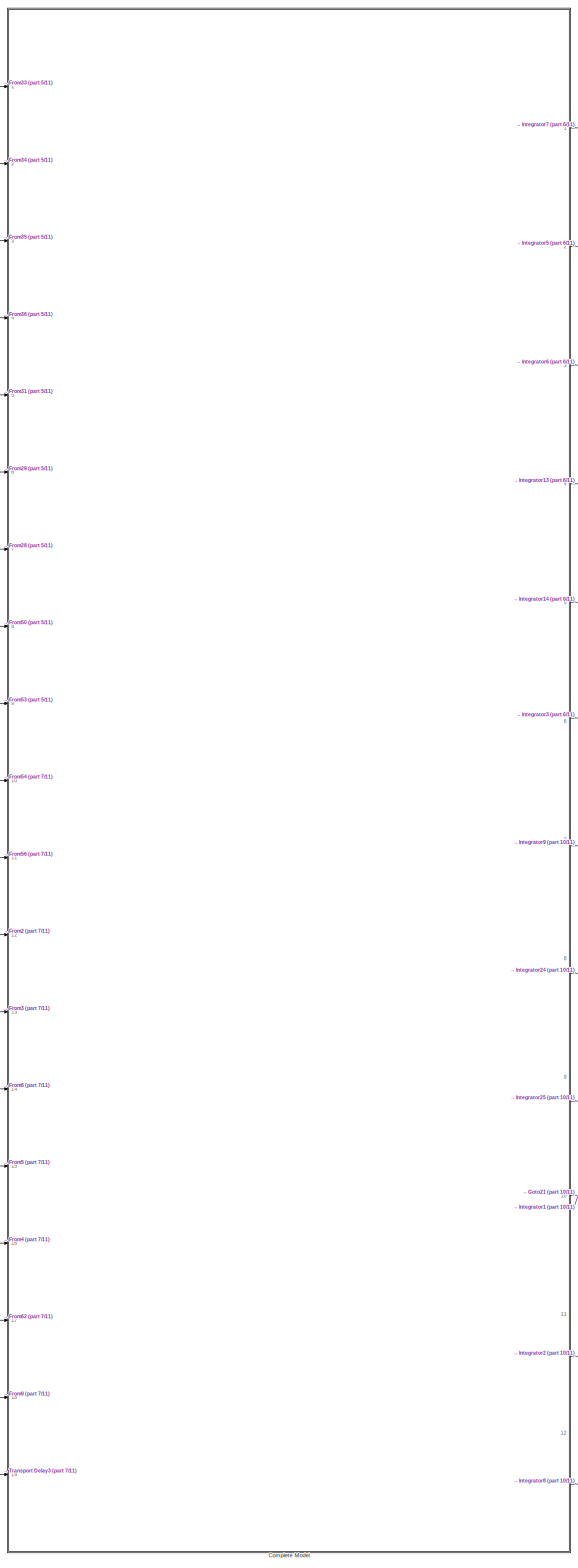
[diagram: root canvas - part 1/11, left side, full height]
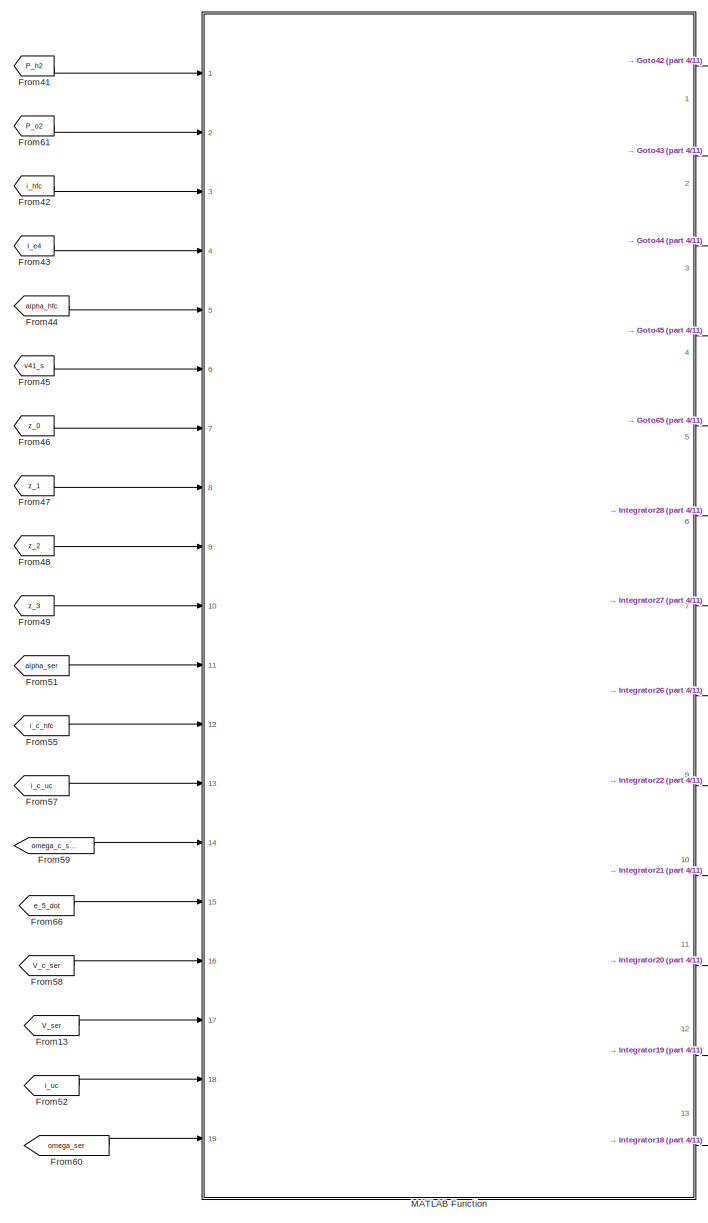
[diagram: root canvas - part 2/11, top center region]
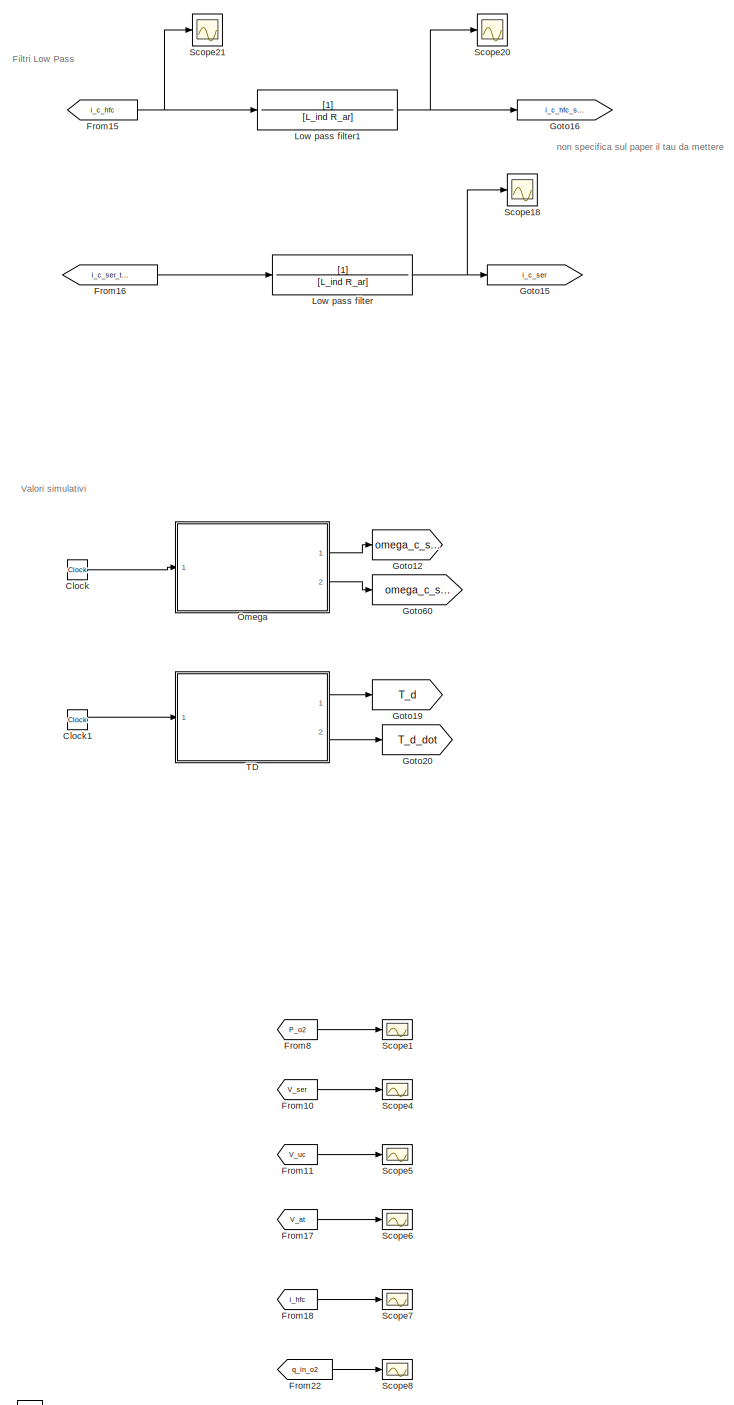
[diagram: root canvas - part 3/11, top right region]
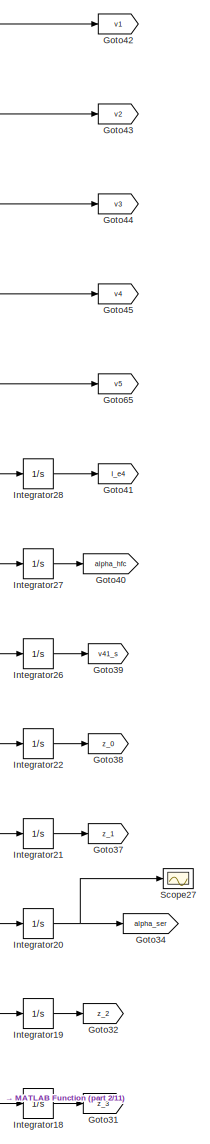
[diagram: root canvas - part 4/11, top center region]
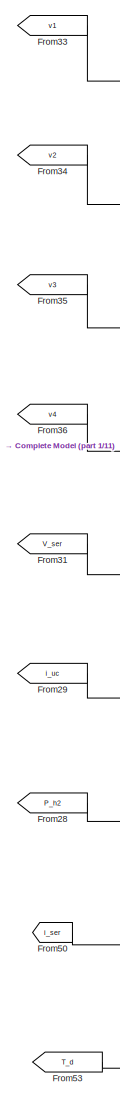
[diagram: root canvas - part 5/11, top left region]
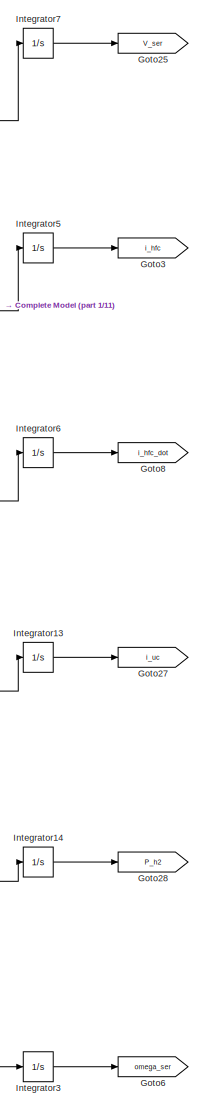
[diagram: root canvas - part 6/11, top left region]
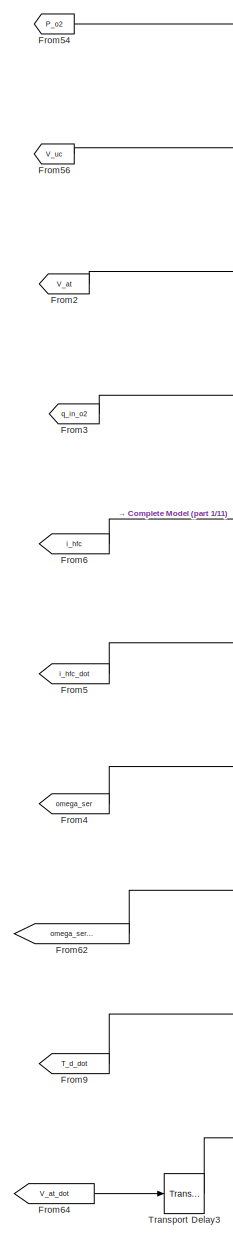
[diagram: root canvas - part 7/11, bottom left region]
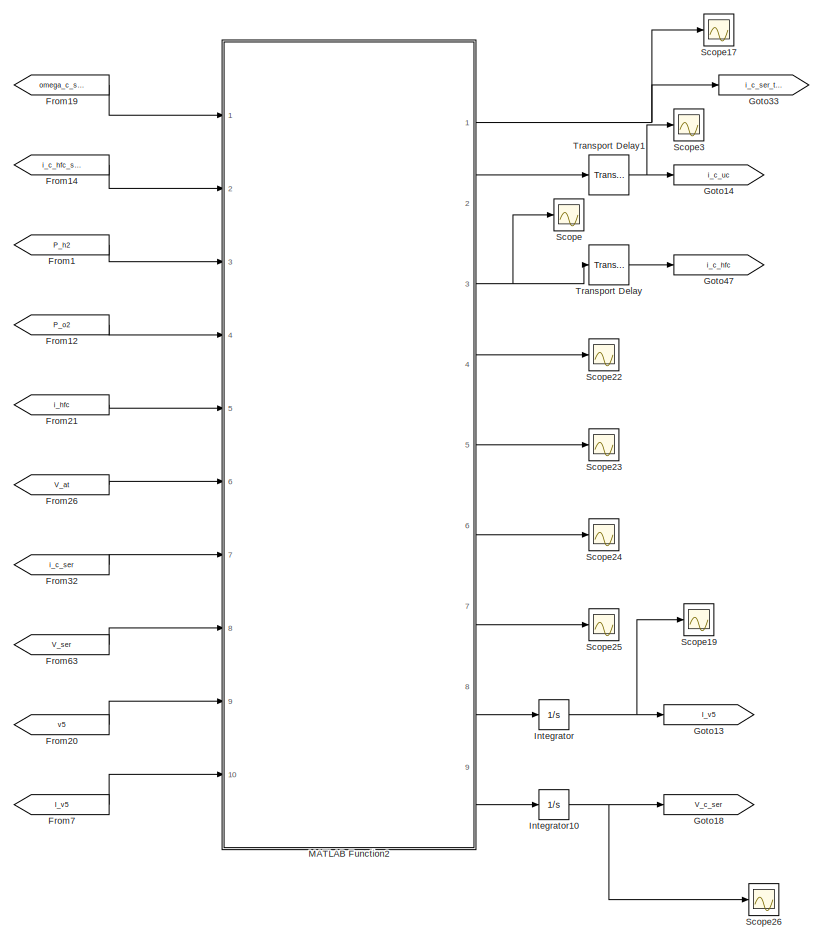
[diagram: root canvas - part 8/11, bottom right region]
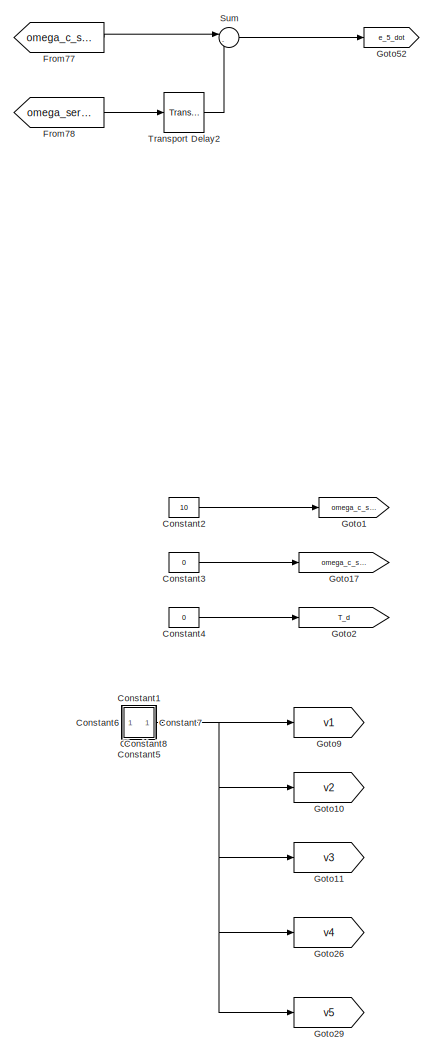
[diagram: root canvas - part 9/11, bottom center region]
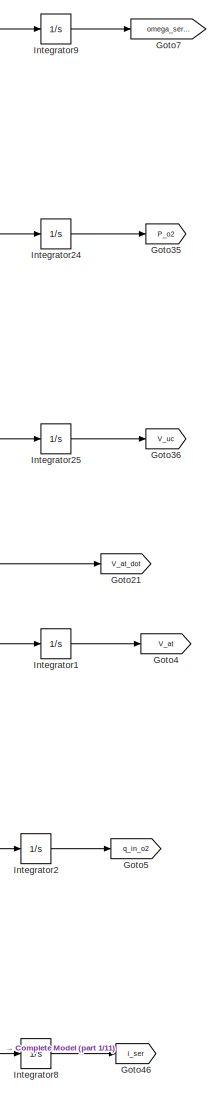
[diagram: root canvas - part 10/11, bottom left region]
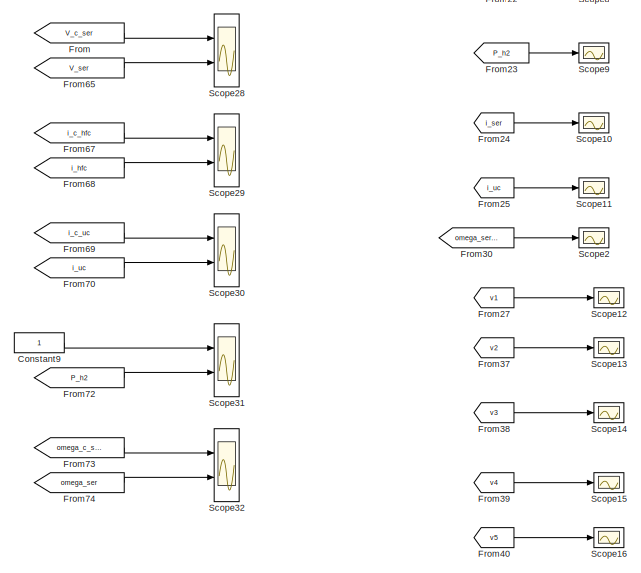
[diagram: root canvas - part 11/11, bottom right region]
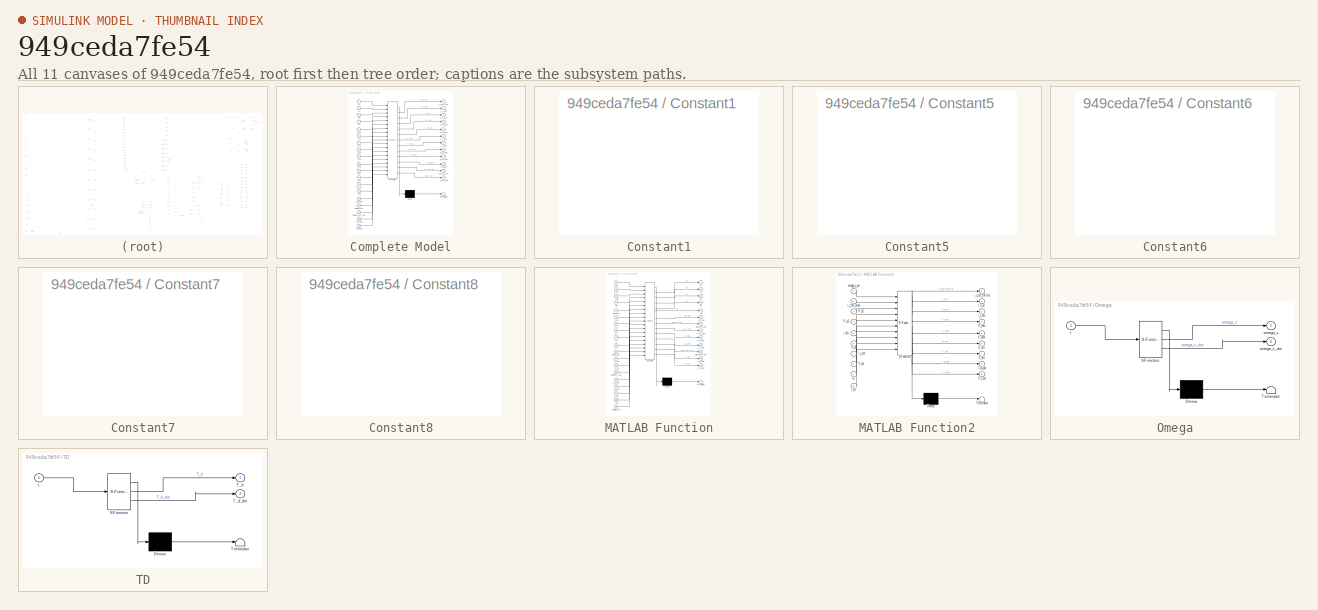
[diagram: thumbnail index - all 11 canvases of the model, root first then tree order]
MODEL slx_949ceda7fe54
KIND model
CONFIG AbsTol = 1e-3
CONFIG EnableMultiTasking = off
CONFIG FixedStep = 10e-4
CONFIG InitFcn = L_ind=4*10^-3;\nalpha_hfc=10\nalpha_ser=3\nR_ar=1\ninit_integratore=0.001\ndelay=0.000001
CONFIG MaxStep = 1e-4
CONFIG MinStep = auto
CONFIG RelTol = 10e-4
CONFIG SampleTimeConstraint = Unconstrained
CONFIG SolverName = ode1
CONFIG StartTime = 0
CONFIG StopTime = 30
BLOCK [Clock] Clock
BLOCK [Clock] Clock1
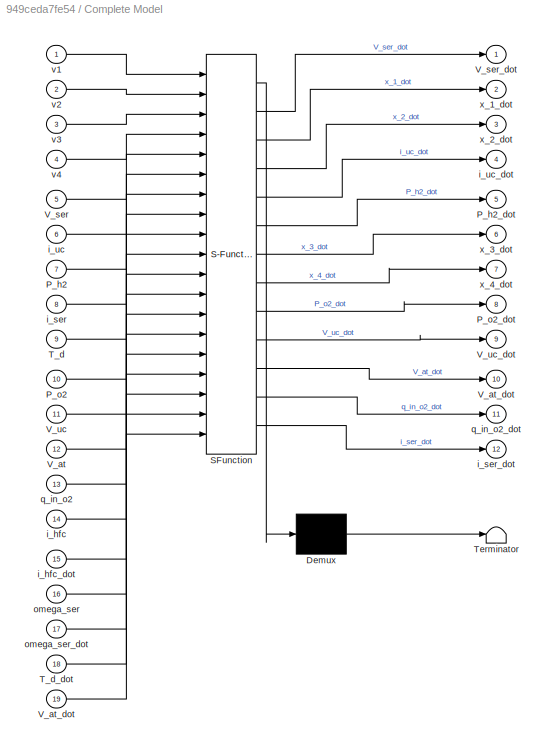
BLOCK [SubSystem] Complete Model
  ErrorFcn = Stateflow.Translate.translate
  PermitHierarchicalResolution = ExplicitOnly
  Ports = [19, 12]
  RequestExecContextInheritance = off
  SFBlockType = MATLAB Function
  TreatAsAtomicUnit = on
BLOCK [Demux] Complete Model/ Demux 
  Outputs = 1
  Ports = [1, 1]
BLOCK [S-Function] Complete Model/ SFunction 
  EnableBusSupport = on
  FunctionName = sf_sfun
  PortCounts = [19 13]
  Ports = [19, 13]
  SFcnIsStateOwnerBlock = off
  SFunctionDeploymentMode = off
  Tag = Stateflow S-Function 5
BLOCK [Terminator] Complete Model/ Terminator 
BLOCK [Inport] Complete Model/P_h2
  Port = 7
BLOCK [Outport] Complete Model/P_h2_dot
  Port = 5
BLOCK [Inport] Complete Model/P_o2
  Port = 10
BLOCK [Outport] Complete Model/P_o2_dot
  Port = 8
BLOCK [Inport] Complete Model/T_d
  Port = 9
BLOCK [Inport] Complete Model/T_d_dot
  Port = 18
BLOCK [Inport] Complete Model/V_at
  Port = 12
BLOCK [Outport] Complete Model/V_at_dot
  Port = 10
BLOCK [Inport] Complete Model/V_at_dot 
  Port = 19
BLOCK [Inport] Complete Model/V_ser
  Port = 5
BLOCK [Outport] Complete Model/V_ser_dot
BLOCK [Inport] Complete Model/V_uc
  Port = 11
BLOCK [Outport] Complete Model/V_uc_dot
  Port = 9
BLOCK [Inport] Complete Model/i_hfc
  Port = 14
BLOCK [Inport] Complete Model/i_hfc_dot
  Port = 15
BLOCK [Inport] Complete Model/i_ser
  Port = 8
BLOCK [Outport] Complete Model/i_ser_dot
  Port = 12
BLOCK [Inport] Complete Model/i_uc
  Port = 6
BLOCK [Outport] Complete Model/i_uc_dot
  Port = 4
BLOCK [Inport] Complete Model/omega_ser
  Port = 16
BLOCK [Inport] Complete Model/omega_ser_dot
  Port = 17
BLOCK [Inport] Complete Model/q_in_o2
  Port = 13
BLOCK [Outport] Complete Model/q_in_o2_dot
  Port = 11
BLOCK [Inport] Complete Model/v1
BLOCK [Inport] Complete Model/v2
  Port = 2
BLOCK [Inport] Complete Model/v3
  Port = 3
BLOCK [Inport] Complete Model/v4
  Port = 4
BLOCK [Outport] Complete Model/x_1_dot
  Port = 2
BLOCK [Outport] Complete Model/x_2_dot
  Port = 3
BLOCK [Outport] Complete Model/x_3_dot
  Port = 6
BLOCK [Outport] Complete Model/x_4_dot
  Port = 7
BLOCK [Constant] Constant
  Commented = on
  Value = 0
BLOCK [SubSystem] Constant1
  Commented = on
  Ports = []
  RequestExecContextInheritance = off
BLOCK [Constant] Constant2
  Commented = on
  Value = 10
BLOCK [Constant] Constant3
  Commented = on
  Value = 0
BLOCK [Constant] Constant4
  Commented = on
  Value = 0
BLOCK [SubSystem] Constant5
  Commented = on
  Ports = []
  RequestExecContextInheritance = off
BLOCK [SubSystem] Constant6
  Commented = on
  Ports = []
  RequestExecContextInheritance = off
BLOCK [SubSystem] Constant7
  Commented = on
  Ports = []
  RequestExecContextInheritance = off
BLOCK [SubSystem] Constant8
  Commented = on
  Ports = []
  RequestExecContextInheritance = off
BLOCK [Constant] Constant9
BLOCK [From] From
  GotoTag = V_c_ser
BLOCK [From] From1
  GotoTag = P_h2
BLOCK [From] From10
  GotoTag = V_ser
BLOCK [From] From11
  GotoTag = V_uc
BLOCK [From] From12
  GotoTag = P_o2
BLOCK [From] From13
  GotoTag = V_ser
BLOCK [From] From14
  GotoTag = i_c_hfc_slow
BLOCK [From] From15
  GotoTag = i_c_hfc
BLOCK [From] From16
  GotoTag = i_c_ser_tofilter
BLOCK [From] From17
  GotoTag = V_at
BLOCK [From] From18
  GotoTag = i_hfc
BLOCK [From] From19
  GotoTag = omega_c_ser
BLOCK [From] From2
  GotoTag = V_at
BLOCK [From] From20
  GotoTag = v5
BLOCK [From] From21
  GotoTag = i_hfc
BLOCK [From] From22
  GotoTag = q_in_o2
BLOCK [From] From23
  GotoTag = P_h2
BLOCK [From] From24
  GotoTag = i_ser
BLOCK [From] From25
  GotoTag = i_uc
BLOCK [From] From26
  GotoTag = V_at
BLOCK [From] From27
  GotoTag = v1
BLOCK [From] From28
  GotoTag = P_h2
BLOCK [From] From29
  GotoTag = i_uc
BLOCK [From] From3
  GotoTag = q_in_o2
BLOCK [From] From30
  GotoTag = omega_ser_dot
BLOCK [From] From31
  GotoTag = V_ser
BLOCK [From] From32
  GotoTag = i_c_ser
BLOCK [From] From33
  GotoTag = v1
BLOCK [From] From34
  GotoTag = v2
BLOCK [From] From35
  GotoTag = v3
BLOCK [From] From36
  GotoTag = v4
BLOCK [From] From37
  GotoTag = v2
BLOCK [From] From38
  GotoTag = v3
BLOCK [From] From39
  GotoTag = v4
BLOCK [From] From4
  GotoTag = omega_ser
BLOCK [From] From40
  GotoTag = v5
BLOCK [From] From41
  GotoTag = P_h2
BLOCK [From] From42
  GotoTag = i_hfc
BLOCK [From] From43
  GotoTag = I_e4
BLOCK [From] From44
  GotoTag = alpha_hfc
BLOCK [From] From45
  GotoTag = v41_s
BLOCK [From] From46
  GotoTag = z_0
BLOCK [From] From47
  GotoTag = z_1
BLOCK [From] From48
  GotoTag = z_2
BLOCK [From] From49
  GotoTag = z_3
BLOCK [From] From5
  GotoTag = i_hfc_dot
BLOCK [From] From50
  GotoTag = i_ser
BLOCK [From] From51
  GotoTag = alpha_ser
BLOCK [From] From52
  GotoTag = i_uc
BLOCK [From] From53
  GotoTag = T_d
BLOCK [From] From54
  GotoTag = P_o2
BLOCK [From] From55
  GotoTag = i_c_hfc
BLOCK [From] From56
  GotoTag = V_uc
BLOCK [From] From57
  GotoTag = i_c_uc
BLOCK [From] From58
  GotoTag = V_c_ser
BLOCK [From] From59
  GotoTag = omega_c_ser
BLOCK [From] From6
  GotoTag = i_hfc
BLOCK [From] From60
  GotoTag = omega_ser
BLOCK [From] From61
  GotoTag = P_o2
BLOCK [From] From62
  GotoTag = omega_ser_dot
BLOCK [From] From63
  GotoTag = V_ser
BLOCK [From] From64
  GotoTag = V_at_dot
BLOCK [From] From65
  GotoTag = V_ser
BLOCK [From] From66
  GotoTag = e_5_dot
BLOCK [From] From67
  GotoTag = i_c_hfc
BLOCK [From] From68
  GotoTag = i_hfc
BLOCK [From] From69
  GotoTag = i_c_uc
BLOCK [From] From7
  GotoTag = I_v5
BLOCK [From] From70
  GotoTag = i_uc
BLOCK [From] From72
  GotoTag = P_h2
BLOCK [From] From73
  GotoTag = omega_c_ser
BLOCK [From] From74
  GotoTag = omega_ser
BLOCK [From] From77
  GotoTag = omega_c_ser_dot
BLOCK [From] From78
  GotoTag = omega_ser_dot
BLOCK [From] From8
  GotoTag = P_o2
BLOCK [From] From9
  GotoTag = T_d_dot
BLOCK [Goto] Goto1
  Commented = on
  GotoTag = omega_c_ser
BLOCK [Goto] Goto10
  Commented = on
  GotoTag = v2
BLOCK [Goto] Goto11
  Commented = on
  GotoTag = v3
BLOCK [Goto] Goto12
  GotoTag = omega_c_ser
BLOCK [Goto] Goto13
  GotoTag = I_v5
BLOCK [Goto] Goto14
  GotoTag = i_c_uc
BLOCK [Goto] Goto15
  GotoTag = i_c_ser
BLOCK [Goto] Goto16
  GotoTag = i_c_hfc_slow
BLOCK [Goto] Goto17
  Commented = on
  GotoTag = omega_c_ser_dot
BLOCK [Goto] Goto18
  GotoTag = V_c_ser
BLOCK [Goto] Goto19
  GotoTag = T_d
BLOCK [Goto] Goto2
  Commented = on
  GotoTag = T_d
BLOCK [Goto] Goto20
  GotoTag = T_d_dot
BLOCK [Goto] Goto21
  GotoTag = V_at_dot
BLOCK [Goto] Goto25
  GotoTag = V_ser
BLOCK [Goto] Goto26
  Commented = on
  GotoTag = v4
BLOCK [Goto] Goto27
  GotoTag = i_uc
BLOCK [Goto] Goto28
  GotoTag = P_h2
BLOCK [Goto] Goto29
  Commented = on
  GotoTag = v5
BLOCK [Goto] Goto3
  GotoTag = i_hfc
BLOCK [Goto] Goto31
  GotoTag = z_3
BLOCK [Goto] Goto32
  GotoTag = z_2
BLOCK [Goto] Goto33
  GotoTag = i_c_ser_tofilter
BLOCK [Goto] Goto34
  GotoTag = alpha_ser
BLOCK [Goto] Goto35
  GotoTag = P_o2
BLOCK [Goto] Goto36
  GotoTag = V_uc
BLOCK [Goto] Goto37
  GotoTag = z_1
BLOCK [Goto] Goto38
  GotoTag = z_0
BLOCK [Goto] Goto39
  GotoTag = v41_s
BLOCK [Goto] Goto4
  GotoTag = V_at
BLOCK [Goto] Goto40
  GotoTag = alpha_hfc
BLOCK [Goto] Goto41
  GotoTag = I_e4
BLOCK [Goto] Goto42
  GotoTag = v1
BLOCK [Goto] Goto43
  GotoTag = v2
BLOCK [Goto] Goto44
  GotoTag = v3
BLOCK [Goto] Goto45
  GotoTag = v4
BLOCK [Goto] Goto46
  GotoTag = i_ser
BLOCK [Goto] Goto47
  GotoTag = i_c_hfc
BLOCK [Goto] Goto5
  GotoTag = q_in_o2
BLOCK [Goto] Goto52
  GotoTag = e_5_dot
BLOCK [Goto] Goto6
  GotoTag = omega_ser
BLOCK [Goto] Goto60
  GotoTag = omega_c_ser_dot
BLOCK [Goto] Goto65
  GotoTag = v5
BLOCK [Goto] Goto7
  GotoTag = omega_ser_dot
BLOCK [Goto] Goto8
  GotoTag = i_hfc_dot
BLOCK [Goto] Goto9
  Commented = on
  GotoTag = v1
BLOCK [Integrator] Integrator
  Ports = [1, 1]
BLOCK [Integrator] Integrator1
  Ports = [1, 1]
BLOCK [Integrator] Integrator10
  Ports = [1, 1]
BLOCK [Integrator] Integrator13
  Ports = [1, 1]
BLOCK [Integrator] Integrator14
  InitialCondition = init_integratore
  Ports = [1, 1]
BLOCK [Integrator] Integrator18
  Ports = [1, 1]
BLOCK [Integrator] Integrator19
  Ports = [1, 1]
BLOCK [Integrator] Integrator2
  Ports = [1, 1]
BLOCK [Integrator] Integrator20
  Ports = [1, 1]
BLOCK [Integrator] Integrator21
  Ports = [1, 1]
BLOCK [Integrator] Integrator22
  Ports = [1, 1]
BLOCK [Integrator] Integrator24
  InitialCondition = init_integratore
  Ports = [1, 1]
BLOCK [Integrator] Integrator25
  Ports = [1, 1]
BLOCK [Integrator] Integrator26
  Ports = [1, 1]
BLOCK [Integrator] Integrator27
  Ports = [1, 1]
BLOCK [Integrator] Integrator28
  Ports = [1, 1]
BLOCK [Integrator] Integrator3
  Ports = [1, 1]
BLOCK [Integrator] Integrator5
  Ports = [1, 1]
BLOCK [Integrator] Integrator6
  Ports = [1, 1]
BLOCK [Integrator] Integrator7
  InitialCondition = init_integratore
  Ports = [1, 1]
BLOCK [Integrator] Integrator8
  Ports = [1, 1]
BLOCK [Integrator] Integrator9
  Ports = [1, 1]
BLOCK [TransferFcn] Low pass filter
  Denominator = [L_ind R_ar]
BLOCK [TransferFcn] Low pass filter1
  Denominator = [L_ind R_ar]
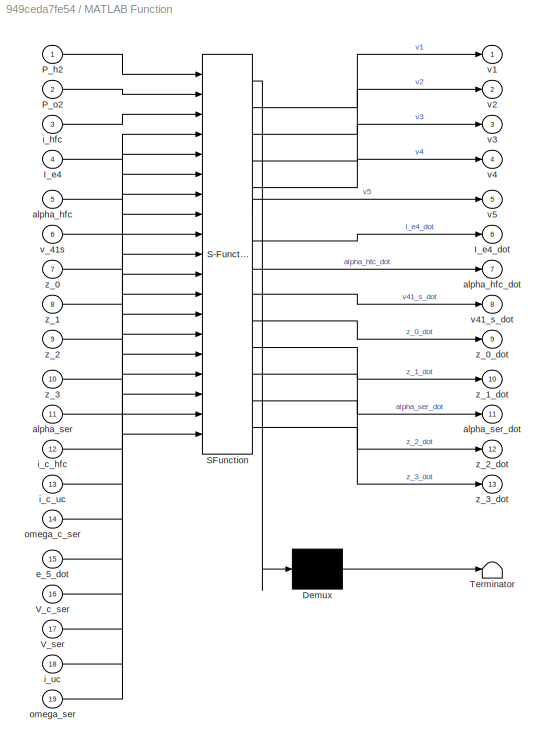
BLOCK [SubSystem] MATLAB Function
  ErrorFcn = Stateflow.Translate.translate
  PermitHierarchicalResolution = ExplicitOnly
  Ports = [19, 13]
  RequestExecContextInheritance = off
  SFBlockType = MATLAB Function
  TreatAsAtomicUnit = on
BLOCK [Demux] MATLAB Function/ Demux 
  Outputs = 1
  Ports = [1, 1]
BLOCK [S-Function] MATLAB Function/ SFunction 
  EnableBusSupport = on
  FunctionName = sf_sfun
  PortCounts = [19 14]
  Ports = [19, 14]
  SFcnIsStateOwnerBlock = off
  SFunctionDeploymentMode = off
  Tag = Stateflow S-Function 1
BLOCK [Terminator] MATLAB Function/ Terminator 
BLOCK [Inport] MATLAB Function/I_e4
  Port = 4
BLOCK [Outport] MATLAB Function/I_e4_dot
  Port = 6
BLOCK [Inport] MATLAB Function/P_h2
BLOCK [Inport] MATLAB Function/P_o2
  Port = 2
BLOCK [Inport] MATLAB Function/V_c_ser
  Port = 16
BLOCK [Inport] MATLAB Function/V_ser
  Port = 17
BLOCK [Inport] MATLAB Function/alpha_hfc
  Port = 5
BLOCK [Outport] MATLAB Function/alpha_hfc_dot
  Port = 7
BLOCK [Inport] MATLAB Function/alpha_ser
  Port = 11
BLOCK [Outport] MATLAB Function/alpha_ser_dot
  Port = 11
BLOCK [Inport] MATLAB Function/e_5_dot
  Port = 15
BLOCK [Inport] MATLAB Function/i_c_hfc
  Port = 12
BLOCK [Inport] MATLAB Function/i_c_uc
  Port = 13
BLOCK [Inport] MATLAB Function/i_hfc
  Port = 3
BLOCK [Inport] MATLAB Function/i_uc
  Port = 18
BLOCK [Inport] MATLAB Function/omega_c_ser
  Port = 14
BLOCK [Inport] MATLAB Function/omega_ser
  Port = 19
BLOCK [Outport] MATLAB Function/v1
BLOCK [Outport] MATLAB Function/v2
  Port = 2
BLOCK [Outport] MATLAB Function/v3
  Port = 3
BLOCK [Outport] MATLAB Function/v4
  Port = 4
BLOCK [Outport] MATLAB Function/v41_s_dot
  Port = 8
BLOCK [Outport] MATLAB Function/v5
  Port = 5
BLOCK [Inport] MATLAB Function/v_41s
  Port = 6
BLOCK [Inport] MATLAB Function/z_0
  Port = 7
BLOCK [Outport] MATLAB Function/z_0_dot
  Port = 9
BLOCK [Inport] MATLAB Function/z_1
  Port = 8
BLOCK [Outport] MATLAB Function/z_1_dot
  Port = 10
BLOCK [Inport] MATLAB Function/z_2
  Port = 9
BLOCK [Outport] MATLAB Function/z_2_dot
  Port = 12
BLOCK [Inport] MATLAB Function/z_3
  Port = 10
BLOCK [Outport] MATLAB Function/z_3_dot
  Port = 13
BLOCK [SubSystem] MATLAB Function2
  ErrorFcn = Stateflow.Translate.translate
  PermitHierarchicalResolution = ExplicitOnly
  Ports = [10, 9]
  RequestExecContextInheritance = off
  SFBlockType = MATLAB Function
  TreatAsAtomicUnit = on
BLOCK [Demux] MATLAB Function2/ Demux 
  Outputs = 1
  Ports = [1, 1]
BLOCK [S-Function] MATLAB Function2/ SFunction 
  EnableBusSupport = on
  FunctionName = sf_sfun
  PortCounts = [10 10]
  Ports = [10, 10]
  SFcnIsStateOwnerBlock = off
  SFunctionDeploymentMode = off
  Tag = Stateflow S-Function 3
BLOCK [Terminator] MATLAB Function2/ Terminator 
BLOCK [Outport] MATLAB Function2/E_hfc
  Port = 6
BLOCK [Inport] MATLAB Function2/I_v5
  Port = 10
BLOCK [Outport] MATLAB Function2/I_v5_dot
  Port = 8
BLOCK [Inport] MATLAB Function2/P_h2
  Port = 3
BLOCK [Inport] MATLAB Function2/P_o2
  Port = 4
BLOCK [Inport] MATLAB Function2/V_at
  Port = 6
BLOCK [Outport] MATLAB Function2/V_c_ser
  Port = 9
BLOCK [Outport] MATLAB Function2/V_hfc
  Port = 7
BLOCK [Outport] MATLAB Function2/V_ohm
  Port = 5
BLOCK [Inport] MATLAB Function2/V_ser
  Port = 8
BLOCK [Outport] MATLAB Function2/V_thfc
  Port = 4
BLOCK [Outport] MATLAB Function2/i_c_hfc
  Port = 3
BLOCK [Inport] MATLAB Function2/i_c_hfc_slow
  Port = 2
BLOCK [Inport] MATLAB Function2/i_c_ser
  Port = 7
BLOCK [Outport] MATLAB Function2/i_c_ser_tofilter
BLOCK [Outport] MATLAB Function2/i_c_uc
  Port = 2
BLOCK [Inport] MATLAB Function2/i_hfc
  Port = 5
BLOCK [Inport] MATLAB Function2/omega_c_ser
BLOCK [Inport] MATLAB Function2/v5
  Port = 9
BLOCK [SubSystem] Omega
  ErrorFcn = Stateflow.Translate.translate
  PermitHierarchicalResolution = ExplicitOnly
  Ports = [1, 2]
  RequestExecContextInheritance = off
  SFBlockType = MATLAB Function
  TreatAsAtomicUnit = on
BLOCK [Demux] Omega/ Demux 
  Outputs = 1
  Ports = [1, 1]
BLOCK [S-Function] Omega/ SFunction 
  EnableBusSupport = on
  FunctionName = sf_sfun
  PortCounts = [1 3]
  Ports = [1, 3]
  SFcnIsStateOwnerBlock = off
  SFunctionDeploymentMode = off
  Tag = Stateflow S-Function 7
BLOCK [Terminator] Omega/ Terminator 
BLOCK [Outport] Omega/omega_c
BLOCK [Outport] Omega/omega_c_dot
  Port = 2
BLOCK [Inport] Omega/t
BLOCK [Scope] Scope
  Floating = off
  NumInputPorts = 1
  Ports = [1]
  ScopeSpecificationString = Simulink.scopes.TimeScopeBlockCfg('CurrentConfiguration', extmgr.ConfigurationSet(extmgr.Configuration('Core','General UI',true),extmgr.Configuration('Core','Source UI',true),extmgr.Configuration('Sources','WiredSimulink',true,'DataLoggingVariableName','ScopeData1'),extmgr.Configuration('Visuals','Time Domain',true,'SerializedDisplays',{struct('MinYLimReal','-0.00006','MaxYLimReal','0.00016','YLab...<+1383ch>
BLOCK [Scope] Scope1
  Floating = off
  NumInputPorts = 1
  Ports = [1]
  ScopeSpecificationString = Simulink.scopes.TimeScopeBlockCfg('CurrentConfiguration', extmgr.ConfigurationSet(extmgr.Configuration('Core','General UI',true),extmgr.Configuration('Core','Source UI',true),extmgr.Configuration('Sources','WiredSimulink',true,'DataLoggingVariableName','ScopeData1'),extmgr.Configuration('Visuals','Time Domain',true,'SerializedDisplays',{struct('MinYLimReal','-12.87154','MaxYLimReal','2.54128','YLa...<+1419ch>
BLOCK [Scope] Scope10
  Floating = off
  NumInputPorts = 1
  Ports = [1]
  ScopeSpecificationString = Simulink.scopes.TimeScopeBlockCfg('CurrentConfiguration', extmgr.ConfigurationSet(extmgr.Configuration('Core','General UI',true),extmgr.Configuration('Core','Source UI',true),extmgr.Configuration('Sources','WiredSimulink',true,'DataLoggingVariableName','ScopeData7'),extmgr.Configuration('Visuals','Time Domain',true,'SerializedDisplays',{struct('MinYLimReal','-5.23002','MaxYLimReal','0.68489','YLab...<+1419ch>
BLOCK [Scope] Scope11
  Floating = off
  NumInputPorts = 1
  Ports = [1]
  ScopeSpecificationString = Simulink.scopes.TimeScopeBlockCfg('CurrentConfiguration', extmgr.ConfigurationSet(extmgr.Configuration('Core','General UI',true),extmgr.Configuration('Core','Source UI',true),extmgr.Configuration('Sources','WiredSimulink',true,'DataLoggingVariableName','ScopeData8'),extmgr.Configuration('Visuals','Time Domain',true,'SerializedDisplays',{struct('MinYLimReal','-77.69144','MaxYLimReal','8.73738','YLa...<+1394ch>
BLOCK [Scope] Scope12
  Floating = off
  NumInputPorts = 1
  Ports = [1]
  ScopeSpecificationString = Simulink.scopes.TimeScopeBlockCfg('CurrentConfiguration', extmgr.ConfigurationSet(extmgr.Configuration('Core','General UI',true),extmgr.Configuration('Core','Source UI',true),extmgr.Configuration('Sources','WiredSimulink',true,'DataLoggingVariableName','ScopeData9'),extmgr.Configuration('Visuals','Time Domain',true,'SerializedDisplays',{struct('MinYLimReal','-0.625','MaxYLimReal','0.625','YLabelRe...<+1470ch>
BLOCK [Scope] Scope13
  Floating = off
  NumInputPorts = 1
  Ports = [1]
  ScopeSpecificationString = Simulink.scopes.TimeScopeBlockCfg('CurrentConfiguration', extmgr.ConfigurationSet(extmgr.Configuration('Core','General UI',true),extmgr.Configuration('Core','Source UI',true),extmgr.Configuration('Sources','WiredSimulink',true,'DataLoggingVariableName','ScopeData10'),extmgr.Configuration('Visuals','Time Domain',true,'SerializedDisplays',{struct('MinYLimReal','-0.625','MaxYLimReal','0.625','YLabelR...<+1471ch>
BLOCK [Scope] Scope14
  Floating = off
  NumInputPorts = 1
  Ports = [1]
  ScopeSpecificationString = Simulink.scopes.TimeScopeBlockCfg('CurrentConfiguration', extmgr.ConfigurationSet(extmgr.Configuration('Core','General UI',true),extmgr.Configuration('Core','Source UI',true),extmgr.Configuration('Sources','WiredSimulink',true,'DataLoggingVariableName','ScopeData11'),extmgr.Configuration('Visuals','Time Domain',true,'SerializedDisplays',{struct('MinYLimReal','-0.09716','MaxYLimReal','0.52409','YLa...<+1502ch>
BLOCK [Scope] Scope15
  Floating = off
  NumInputPorts = 1
  Ports = [1]
  ScopeSpecificationString = Simulink.scopes.TimeScopeBlockCfg('CurrentConfiguration', extmgr.ConfigurationSet(extmgr.Configuration('Core','General UI',true),extmgr.Configuration('Core','Source UI',true),extmgr.Configuration('Sources','WiredSimulink',true,'DataLoggingVariableName','ScopeData12'),extmgr.Configuration('Visuals','Time Domain',true,'SerializedDisplays',{struct('MinYLimReal','-0.000002','MaxYLimReal','0.00001','YL...<+1487ch>
BLOCK [Scope] Scope16
  Floating = off
  NumInputPorts = 1
  Ports = [1]
  ScopeSpecificationString = Simulink.scopes.TimeScopeBlockCfg('CurrentConfiguration', extmgr.ConfigurationSet(extmgr.Configuration('Core','General UI',true),extmgr.Configuration('Core','Source UI',true),extmgr.Configuration('Sources','WiredSimulink',true,'DataLoggingVariableName','ScopeData13'),extmgr.Configuration('Visuals','Time Domain',true,'SerializedDisplays',{struct('MinYLimReal','-0.50601','MaxYLimReal','0.05622','YLa...<+1483ch>
BLOCK [Scope] Scope17
  Floating = off
  NumInputPorts = 1
  Ports = [1]
  ScopeSpecificationString = Simulink.scopes.TimeScopeBlockCfg('CurrentConfiguration', extmgr.ConfigurationSet(extmgr.Configuration('Core','General UI',true),extmgr.Configuration('Core','Source UI',true),extmgr.Configuration('Sources','WiredSimulink',true,'DataLoggingVariableName','ScopeData3'),extmgr.Configuration('Visuals','Time Domain',true,'SerializedDisplays',{struct('MinYLimReal','-22.49966','MaxYLimReal','2.48553','YLa...<+1396ch>
BLOCK [Scope] Scope18
  Floating = off
  NumInputPorts = 1
  Ports = [1]
  ScopeSpecificationString = Simulink.scopes.TimeScopeBlockCfg('CurrentConfiguration', extmgr.ConfigurationSet(extmgr.Configuration('Core','General UI',true),extmgr.Configuration('Core','Source UI',true),extmgr.Configuration('Sources','WiredSimulink',true,'DataLoggingVariableName','ScopeData4'),extmgr.Configuration('Visuals','Time Domain',true,'SerializedDisplays',{struct('MinYLimReal','-22.50208','MaxYLimReal','2.50023','YLa...<+1378ch>
BLOCK [Scope] Scope19
  Floating = off
  NumInputPorts = 1
  Ports = [1]
  ScopeSpecificationString = Simulink.scopes.TimeScopeBlockCfg('CurrentConfiguration', extmgr.ConfigurationSet(extmgr.Configuration('Core','General UI',true),extmgr.Configuration('Core','Source UI',true),extmgr.Configuration('Sources','WiredSimulink',true,'DataLoggingVariableName','ScopeData1'),extmgr.Configuration('Visuals','Time Domain',true,'SerializedDisplays',{struct('MinYLimReal','-6.55732','MaxYLimReal','0.7288','YLabe...<+1367ch>
BLOCK [Scope] Scope2
  Floating = off
  NumInputPorts = 1
  Ports = [1]
  ScopeSpecificationString = Simulink.scopes.TimeScopeBlockCfg('CurrentConfiguration', extmgr.ConfigurationSet(extmgr.Configuration('Core','General UI',true),extmgr.Configuration('Core','Source UI',true),extmgr.Configuration('Sources','WiredSimulink',true,'DataLoggingVariableName','ScopeData1'),extmgr.Configuration('Visuals','Time Domain',true,'SerializedDisplays',{struct('MinYLimReal','-412.55714','MaxYLimReal','144.39544','...<+1403ch>
BLOCK [Scope] Scope20
  Floating = off
  NumInputPorts = 1
  Ports = [1]
  ScopeSpecificationString = Simulink.scopes.TimeScopeBlockCfg('CurrentConfiguration', extmgr.ConfigurationSet(extmgr.Configuration('Core','General UI',true),extmgr.Configuration('Core','Source UI',true),extmgr.Configuration('Sources','WiredSimulink',true,'DataLoggingVariableName','ScopeData5'),extmgr.Configuration('Visuals','Time Domain',true,'SerializedDisplays',{struct('MinYLimReal','-0.21635','MaxYLimReal','0.04465','YLab...<+1375ch>
BLOCK [Scope] Scope21
  Floating = off
  NumInputPorts = 1
  Ports = [1]
  ScopeSpecificationString = Simulink.scopes.TimeScopeBlockCfg('CurrentConfiguration', extmgr.ConfigurationSet(extmgr.Configuration('Core','General UI',true),extmgr.Configuration('Core','Source UI',true),extmgr.Configuration('Sources','WiredSimulink',true,'DataLoggingVariableName','ScopeData6'),extmgr.Configuration('Visuals','Time Domain',true,'SerializedDisplays',{struct('MinYLimReal','-0.00027','MaxYLimReal','0.0003','YLabe...<+1370ch>
BLOCK [Scope] Scope22
  Floating = off
  NumInputPorts = 1
  Ports = [1]
  ScopeSpecificationString = Simulink.scopes.TimeScopeBlockCfg('CurrentConfiguration', extmgr.ConfigurationSet(extmgr.Configuration('Core','General UI',true),extmgr.Configuration('Core','Source UI',true),extmgr.Configuration('Sources','WiredSimulink',true,'DataLoggingVariableName','ScopeData7'),extmgr.Configuration('Visuals','Time Domain',true,'SerializedDisplays',{struct('MinYLimReal','-12079.98627','MaxYLimReal','2045.75051...<+1410ch>
BLOCK [Scope] Scope23
  Floating = off
  NumInputPorts = 1
  Ports = [1]
  ScopeSpecificationString = Simulink.scopes.TimeScopeBlockCfg('CurrentConfiguration', extmgr.ConfigurationSet(extmgr.Configuration('Core','General UI',true),extmgr.Configuration('Core','Source UI',true),extmgr.Configuration('Sources','WiredSimulink',true,'DataLoggingVariableName','ScopeData8'),extmgr.Configuration('Visuals','Time Domain',true,'SerializedDisplays',{struct('MinYLimReal','-4.80929','MaxYLimReal','28.67016','YLa...<+1385ch>
BLOCK [Scope] Scope24
  Floating = off
  NumInputPorts = 1
  Ports = [1]
  ScopeSpecificationString = Simulink.scopes.TimeScopeBlockCfg('CurrentConfiguration', extmgr.ConfigurationSet(extmgr.Configuration('Core','General UI',true),extmgr.Configuration('Core','Source UI',true),extmgr.Configuration('Sources','WiredSimulink',true,'DataLoggingVariableName','ScopeData9'),extmgr.Configuration('Visuals','Time Domain',true,'SerializedDisplays',{struct('MinYLimReal','-0.15431','MaxYLimReal','0.06803','YLab...<+1381ch>
BLOCK [Scope] Scope25
  Floating = off
  NumInputPorts = 1
  Ports = [1]
  ScopeSpecificationString = Simulink.scopes.TimeScopeBlockCfg('CurrentConfiguration', extmgr.ConfigurationSet(extmgr.Configuration('Core','General UI',true),extmgr.Configuration('Core','Source UI',true),extmgr.Configuration('Sources','WiredSimulink',true,'DataLoggingVariableName','ScopeData10'),extmgr.Configuration('Visuals','Time Domain',true,'SerializedDisplays',{struct('MinYLimReal','-65.29722','MaxYLimReal','11.05811','Y...<+1388ch>
BLOCK [Scope] Scope26
  Floating = off
  NumInputPorts = 1
  Ports = [1]
  ScopeSpecificationString = Simulink.scopes.TimeScopeBlockCfg('CurrentConfiguration', extmgr.ConfigurationSet(extmgr.Configuration('Core','General UI',true),extmgr.Configuration('Core','Source UI',true),extmgr.Configuration('Sources','WiredSimulink',true,'DataLoggingVariableName','ScopeData2'),extmgr.Configuration('Visuals','Time Domain',true,'SerializedDisplays',{struct('MinYLimReal','-0.30031','MaxYLimReal','0.03337','YLab...<+1371ch>
BLOCK [Scope] Scope27
  Floating = off
  NumInputPorts = 1
  Ports = [1]
  ScopeSpecificationString = Simulink.scopes.TimeScopeBlockCfg('CurrentConfiguration', extmgr.ConfigurationSet(extmgr.Configuration('Core','General UI',true),extmgr.Configuration('Core','Source UI',true),extmgr.Configuration('Sources','WiredSimulink',true,'DataLoggingVariableName','ScopeData3'),extmgr.Configuration('Visuals','Time Domain',true,'SerializedDisplays',{struct('MinYLimReal','-0.0375','MaxYLimReal','0.3375','YLabel...<+1409ch>
BLOCK [Scope] Scope28
  Floating = off
  NumInputPorts = 2
  Ports = [2]
  ScopeSpecificationString = Simulink.scopes.TimeScopeBlockCfg('CurrentConfiguration', extmgr.ConfigurationSet(extmgr.Configuration('Core','General UI',true),extmgr.Configuration('Core','Source UI',true),extmgr.Configuration('Sources','WiredSimulink',true,'DataLoggingVariableName','ScopeData4'),extmgr.Configuration('Visuals','Time Domain',true,'SerializedDisplays',{struct('MinYLimReal','-54.08529','MaxYLimReal','39.32118','YL...<+1418ch>
BLOCK [Scope] Scope29
  Floating = off
  NumInputPorts = 2
  Ports = [2]
  ScopeSpecificationString = Simulink.scopes.TimeScopeBlockCfg('CurrentConfiguration', extmgr.ConfigurationSet(extmgr.Configuration('Core','General UI',true),extmgr.Configuration('Core','Source UI',true),extmgr.Configuration('Sources','WiredSimulink',true,'DataLoggingVariableName','ScopeData5'),extmgr.Configuration('Visuals','Time Domain',true,'SerializedDisplays',{struct('MinYLimReal','-97.72707','MaxYLimReal','485.87864','Y...<+1469ch>
BLOCK [Scope] Scope3
  Floating = off
  NumInputPorts = 1
  Ports = [1]
  ScopeSpecificationString = Simulink.scopes.TimeScopeBlockCfg('CurrentConfiguration', extmgr.ConfigurationSet(extmgr.Configuration('Core','General UI',true),extmgr.Configuration('Core','Source UI',true),extmgr.Configuration('Sources','WiredSimulink',true,'DataLoggingVariableName','ScopeData2'),extmgr.Configuration('Visuals','Time Domain',true,'SerializedDisplays',{struct('MinYLimReal','-0.2936','MaxYLimReal','0.17066','YLabe...<+1371ch>
BLOCK [Scope] Scope30
  Floating = off
  NumInputPorts = 2
  Ports = [2]
  ScopeSpecificationString = Simulink.scopes.TimeScopeBlockCfg('CurrentConfiguration', extmgr.ConfigurationSet(extmgr.Configuration('Core','General UI',true),extmgr.Configuration('Core','Source UI',true),extmgr.Configuration('Sources','WiredSimulink',true,'DataLoggingVariableName','ScopeData6'),extmgr.Configuration('Visuals','Time Domain',true,'SerializedDisplays',{struct('MinYLimReal','-60.34072','MaxYLimReal','11.3823','YLa...<+1440ch>
BLOCK [Scope] Scope31
  Floating = off
  NumInputPorts = 2
  Ports = [2]
  ScopeSpecificationString = Simulink.scopes.TimeScopeBlockCfg('CurrentConfiguration', extmgr.ConfigurationSet(extmgr.Configuration('Core','General UI',true),extmgr.Configuration('Core','Source UI',true),extmgr.Configuration('Sources','WiredSimulink',true,'DataLoggingVariableName','ScopeData7'),extmgr.Configuration('Visuals','Time Domain',true,'SerializedDisplays',{struct('MinYLimReal','-0.22745','MaxYLimReal','2.05702','YLab...<+1454ch>
BLOCK [Scope] Scope32
  Floating = off
  NumInputPorts = 2
  Ports = [2]
  ScopeSpecificationString = Simulink.scopes.TimeScopeBlockCfg('CurrentConfiguration', extmgr.ConfigurationSet(extmgr.Configuration('Core','General UI',true),extmgr.Configuration('Core','Source UI',true),extmgr.Configuration('Sources','WiredSimulink',true,'DataLoggingVariableName','ScopeData8'),extmgr.Configuration('Visuals','Time Domain',true,'SerializedDisplays',{struct('MinYLimReal','-2041.21262','MaxYLimReal','449.02362',...<+1448ch>
BLOCK [Scope] Scope4
  Floating = off
  NumInputPorts = 1
  Ports = [1]
  ScopeSpecificationString = Simulink.scopes.TimeScopeBlockCfg('CurrentConfiguration', extmgr.ConfigurationSet(extmgr.Configuration('Core','General UI',true),extmgr.Configuration('Core','Source UI',true),extmgr.Configuration('Sources','WiredSimulink',true,'DataLoggingVariableName','ScopeData1'),extmgr.Configuration('Visuals','Time Domain',true,'SerializedDisplays',{struct('MinYLimReal','-9.6887','MaxYLimReal','2.18763','YLabe...<+1385ch>
BLOCK [Scope] Scope5
  Floating = off
  NumInputPorts = 1
  Ports = [1]
  ScopeSpecificationString = Simulink.scopes.TimeScopeBlockCfg('CurrentConfiguration', extmgr.ConfigurationSet(extmgr.Configuration('Core','General UI',true),extmgr.Configuration('Core','Source UI',true),extmgr.Configuration('Sources','WiredSimulink',true,'DataLoggingVariableName','ScopeData2'),extmgr.Configuration('Visuals','Time Domain',true,'SerializedDisplays',{struct('MinYLimReal','-0.02285','MaxYLimReal','0.00275','YLab...<+1390ch>
BLOCK [Scope] Scope6
  Floating = off
  NumInputPorts = 1
  Ports = [1]
  ScopeSpecificationString = Simulink.scopes.TimeScopeBlockCfg('CurrentConfiguration', extmgr.ConfigurationSet(extmgr.Configuration('Core','General UI',true),extmgr.Configuration('Core','Source UI',true),extmgr.Configuration('Sources','WiredSimulink',true,'DataLoggingVariableName','ScopeData3'),extmgr.Configuration('Visuals','Time Domain',true,'SerializedDisplays',{struct('MinYLimReal','-1.77667','MaxYLimReal','15.17775','YLa...<+1393ch>
BLOCK [Scope] Scope7
  Floating = off
  NumInputPorts = 1
  Ports = [1]
  ScopeSpecificationString = Simulink.scopes.TimeScopeBlockCfg('CurrentConfiguration', extmgr.ConfigurationSet(extmgr.Configuration('Core','General UI',true),extmgr.Configuration('Core','Source UI',true),extmgr.Configuration('Sources','WiredSimulink',true,'DataLoggingVariableName','ScopeData4'),extmgr.Configuration('Visuals','Time Domain',true,'SerializedDisplays',{struct('MinYLimReal','-22.288','MaxYLimReal','190.27141','YLa...<+1425ch>
BLOCK [Scope] Scope8
  Floating = off
  NumInputPorts = 1
  Ports = [1]
  ScopeSpecificationString = Simulink.scopes.TimeScopeBlockCfg('CurrentConfiguration', extmgr.ConfigurationSet(extmgr.Configuration('Core','General UI',true),extmgr.Configuration('Core','Source UI',true),extmgr.Configuration('Sources','WiredSimulink',true,'DataLoggingVariableName','ScopeData5'),extmgr.Configuration('Visuals','Time Domain',true,'SerializedDisplays',{struct('MinYLimReal','-19938153416956320783335628932484358951...<+3815ch>
BLOCK [Scope] Scope9
  Floating = off
  NumInputPorts = 1
  Ports = [1]
  ScopeSpecificationString = Simulink.scopes.TimeScopeBlockCfg('CurrentConfiguration', extmgr.ConfigurationSet(extmgr.Configuration('Core','General UI',true),extmgr.Configuration('Core','Source UI',true),extmgr.Configuration('Sources','WiredSimulink',true,'DataLoggingVariableName','ScopeData6'),extmgr.Configuration('Visuals','Time Domain',true,'SerializedDisplays',{struct('MinYLimReal','-12878.90621','MaxYLimReal','115910.156...<+1451ch>
BLOCK [Sum] Sum
  Inputs = |-+
  Ports = [2, 1]
BLOCK [SubSystem] TD
  ErrorFcn = Stateflow.Translate.translate
  PermitHierarchicalResolution = ExplicitOnly
  Ports = [1, 2]
  RequestExecContextInheritance = off
  SFBlockType = MATLAB Function
  TreatAsAtomicUnit = on
BLOCK [Demux] TD/ Demux 
  Outputs = 1
  Ports = [1, 1]
BLOCK [S-Function] TD/ SFunction 
  EnableBusSupport = on
  FunctionName = sf_sfun
  PortCounts = [1 3]
  Ports = [1, 3]
  SFcnIsStateOwnerBlock = off
  SFunctionDeploymentMode = off
  Tag = Stateflow S-Function 8
BLOCK [Terminator] TD/ Terminator 
BLOCK [Outport] TD/T_d
BLOCK [Outport] TD/T_d_dot
  Port = 2
BLOCK [Inport] TD/t
BLOCK [TransportDelay] Transport Delay
  DelayTime = delay
  Ports = [1, 1]
BLOCK [TransportDelay] Transport Delay1
  DelayTime = delay
  Ports = [1, 1]
BLOCK [TransportDelay] Transport Delay2
  DelayTime = delay
  Ports = [1, 1]
BLOCK [TransportDelay] Transport Delay3
  DelayTime = delay
  Ports = [1, 1]
ANNOTATION (root): Filtri Low Pass
ANNOTATION (root): Valori simulativi
ANNOTATION (root): non specifica sul paper il tau da mettere
LINE Clock1:1 -> TD:1
LINE Clock:1 -> Omega:1
LINE Complete Model:1 -> Integrator7:1
NET Complete Model:10 -> Goto21:1, Integrator1:1
LINE Complete Model:11 -> Integrator2:1
LINE Complete Model:12 -> Integrator8:1
LINE Complete Model:2 -> Integrator5:1
LINE Complete Model:3 -> Integrator6:1
LINE Complete Model:4 -> Integrator13:1
LINE Complete Model:5 -> Integrator14:1
LINE Complete Model:6 -> Integrator3:1
LINE Complete Model:7 -> Integrator9:1
LINE Complete Model:8 -> Integrator24:1
LINE Complete Model:9 -> Integrator25:1
LINE Constant2:1 -> Goto1:1
LINE Constant3:1 -> Goto17:1
LINE Constant4:1 -> Goto2:1
LINE Constant9:1 -> Scope31:1
NET Constant:1 -> Goto10:1, Goto11:1, Goto26:1, Goto29:1, Goto9:1
LINE From10:1 -> Scope4:1
LINE From11:1 -> Scope5:1
LINE From12:1 -> MATLAB Function2:4
LINE From13:1 -> MATLAB Function:17
LINE From14:1 -> MATLAB Function2:2
NET From15:1 -> Low pass filter1:1, Scope21:1
LINE From16:1 -> Low pass filter:1
LINE From17:1 -> Scope6:1
LINE From18:1 -> Scope7:1
LINE From19:1 -> MATLAB Function2:1
LINE From1:1 -> MATLAB Function2:3
LINE From20:1 -> MATLAB Function2:9
LINE From21:1 -> MATLAB Function2:5
LINE From22:1 -> Scope8:1
LINE From23:1 -> Scope9:1
LINE From24:1 -> Scope10:1
LINE From25:1 -> Scope11:1
LINE From26:1 -> MATLAB Function2:6
LINE From27:1 -> Scope12:1
LINE From28:1 -> Complete Model:7
LINE From29:1 -> Complete Model:6
LINE From2:1 -> Complete Model:12
LINE From30:1 -> Scope2:1
LINE From31:1 -> Complete Model:5
LINE From32:1 -> MATLAB Function2:7
LINE From33:1 -> Complete Model:1
LINE From34:1 -> Complete Model:2
LINE From35:1 -> Complete Model:3
LINE From36:1 -> Complete Model:4
LINE From37:1 -> Scope13:1
LINE From38:1 -> Scope14:1
LINE From39:1 -> Scope15:1
LINE From3:1 -> Complete Model:13
LINE From40:1 -> Scope16:1
LINE From41:1 -> MATLAB Function:1
LINE From42:1 -> MATLAB Function:3
LINE From43:1 -> MATLAB Function:4
LINE From44:1 -> MATLAB Function:5
LINE From45:1 -> MATLAB Function:6
LINE From46:1 -> MATLAB Function:7
LINE From47:1 -> MATLAB Function:8
LINE From48:1 -> MATLAB Function:9
LINE From49:1 -> MATLAB Function:10
LINE From4:1 -> Complete Model:16
LINE From50:1 -> Complete Model:8
LINE From51:1 -> MATLAB Function:11
LINE From52:1 -> MATLAB Function:18
LINE From53:1 -> Complete Model:9
LINE From54:1 -> Complete Model:10
LINE From55:1 -> MATLAB Function:12
LINE From56:1 -> Complete Model:11
LINE From57:1 -> MATLAB Function:13
LINE From58:1 -> MATLAB Function:16
LINE From59:1 -> MATLAB Function:14
LINE From5:1 -> Complete Model:15
LINE From60:1 -> MATLAB Function:19
LINE From61:1 -> MATLAB Function:2
LINE From62:1 -> Complete Model:17
LINE From63:1 -> MATLAB Function2:8
LINE From64:1 -> Transport Delay3:1
LINE From65:1 -> Scope28:2
LINE From66:1 -> MATLAB Function:15
LINE From67:1 -> Scope29:1
LINE From68:1 -> Scope29:2
LINE From69:1 -> Scope30:1
LINE From6:1 -> Complete Model:14
LINE From70:1 -> Scope30:2
LINE From72:1 -> Scope31:2
LINE From73:1 -> Scope32:1
LINE From74:1 -> Scope32:2
LINE From77:1 -> Sum:1
LINE From78:1 -> Transport Delay2:1
LINE From7:1 -> MATLAB Function2:10
LINE From8:1 -> Scope1:1
LINE From9:1 -> Complete Model:18
LINE From:1 -> Scope28:1
NET Integrator10:1 -> Goto18:1, Scope26:1
LINE Integrator13:1 -> Goto27:1
LINE Integrator14:1 -> Goto28:1
LINE Integrator18:1 -> Goto31:1
LINE Integrator19:1 -> Goto32:1
LINE Integrator1:1 -> Goto4:1
NET Integrator20:1 -> Goto34:1, Scope27:1
LINE Integrator21:1 -> Goto37:1
LINE Integrator22:1 -> Goto38:1
LINE Integrator24:1 -> Goto35:1
LINE Integrator25:1 -> Goto36:1
LINE Integrator26:1 -> Goto39:1
LINE Integrator27:1 -> Goto40:1
LINE Integrator28:1 -> Goto41:1
LINE Integrator2:1 -> Goto5:1
LINE Integrator3:1 -> Goto6:1
LINE Integrator5:1 -> Goto3:1
LINE Integrator6:1 -> Goto8:1
LINE Integrator7:1 -> Goto25:1
LINE Integrator8:1 -> Goto46:1
LINE Integrator9:1 -> Goto7:1
NET Integrator:1 -> Goto13:1, Scope19:1
NET Low pass filter1:1 -> Goto16:1, Scope20:1
NET Low pass filter:1 -> Goto15:1, Scope18:1
NET MATLAB Function2:1 -> Goto33:1, Scope17:1
LINE MATLAB Function2:2 -> Transport Delay1:1
NET MATLAB Function2:3 -> Scope:1, Transport Delay:1
LINE MATLAB Function2:4 -> Scope22:1
LINE MATLAB Function2:5 -> Scope23:1
LINE MATLAB Function2:6 -> Scope24:1
LINE MATLAB Function2:7 -> Scope25:1
LINE MATLAB Function2:8 -> Integrator:1
LINE MATLAB Function2:9 -> Integrator10:1
LINE MATLAB Function:1 -> Goto42:1
LINE MATLAB Function:10 -> Integrator21:1
LINE MATLAB Function:11 -> Integrator20:1
LINE MATLAB Function:12 -> Integrator19:1
LINE MATLAB Function:13 -> Integrator18:1
LINE MATLAB Function:2 -> Goto43:1
LINE MATLAB Function:3 -> Goto44:1
LINE MATLAB Function:4 -> Goto45:1
LINE MATLAB Function:5 -> Goto65:1
LINE MATLAB Function:6 -> Integrator28:1
LINE MATLAB Function:7 -> Integrator27:1
LINE MATLAB Function:8 -> Integrator26:1
LINE MATLAB Function:9 -> Integrator22:1
LINE Omega:1 -> Goto12:1
LINE Omega:2 -> Goto60:1
LINE Sum:1 -> Goto52:1
LINE TD:1 -> Goto19:1
LINE TD:2 -> Goto20:1
NET Transport Delay1:1 -> Goto14:1, Scope3:1
LINE Transport Delay2:1 -> Sum:2
LINE Transport Delay3:1 -> Complete Model:19
LINE Transport Delay:1 -> Goto47:1
note: NET lines group one-source signal fan-out (src -> all destinations, sorted); 1:1 wires keep LINE
CHART Complete Model states=1 transitions=1
  STATE_LABEL 'eML_blk_kernel()'
  STATE_LABEL 'SCRIPT:\nfunction [V_ser_dot,x_1_dot,x_2_dot,i_uc_dot,P_h2_dot,x_3_dot,x_4_dot,P_o2_dot,V_uc_dot,V_at_dot,q_in_o2_dot,i_ser_dot] = CompleteModel(v1,v2,v3,v4,V_ser,i_uc,P_h2,i_ser,T_d,P_o2,V_uc,V_at,q_in_o2,i_hfc,i_hfc_dot,omega_ser,omega_ser_dot,T_d_dot,V_at_dot)\nL_ind=4*10e-3;\nk_b=0.1;\nb=0.1;\nR_ar=1;\nk_m=5;\nJ=0.5;\nn_g=0.3;\nR_at=0.08;\nR_ohm=0.06;\ndeltas_1=170;\ntau_o2=6.74;\nk_o2=2.52e-3;\ntau_h2=3.37...<+2123ch>'
CHART Omega states=1 transitions=1
  STATE_LABEL 'eML_blk_kernel()'
  STATE_LABEL 'SCRIPT:\nfunction [omega_c,omega_c_dot]  = Omega(t)\nomega_c=100+100*sin(0.2*t);\nomega_c_dot=20*cos(0.2*t);\nend\n'
CHART TD states=1 transitions=1
  STATE_LABEL 'eML_blk_kernel()'
  STATE_LABEL 'SCRIPT:\nfunction [T_d,T_d_dot] = Omega(t)\nT_d=10+8*sin(0.2*t)+2*sin(10*t);\nT_d_dot=1.6*cos(0.2*t) + 20*cos(10*t);\nend\n'
CHART MATLAB Function states=1 transitions=1
  STATE_LABEL 'eML_blk_kernel()'
  STATE_LABEL 'SCRIPT:\nfunction [v1,v2,v3,v4,v5,I_e4_dot,alpha_hfc_dot,v41_s_dot,z_0_dot,z_1_dot,alpha_ser_dot,z_2_dot,z_3_dot] = fcn(P_h2,P_o2,i_hfc,I_e4,alpha_hfc,v_41s,z_0,z_1,z_2,z_3,alpha_ser,i_c_hfc,i_c_uc,omega_c_ser,e_5_dot,V_c_ser,V_ser,i_uc,omega_ser)\n%% parametri modello\nL_ind=4*10e-3;\nk_b=0.1;\nb=0.1;\nR_ar=1;\nk_m=5;\nJ=0.5;\nn_g=0.3;\nR_at=0.08;\nR_ohm=0.06;\ndeltas_1=170;\ntau_o2=6.74;\nk_o2=2.52e-3;\ntau_h2...<+2434ch>'
CHART MATLAB Function2 states=1 transitions=1
  STATE_LABEL 'eML_blk_kernel()'
  STATE_LABEL 'SCRIPT:\nfunction [i_c_ser_tofilter,i_c_uc,i_c_hfc,V_thfc,V_ohm,E_hfc,V_hfc,I_v5_dot,V_c_ser] = Reference(omega_c_ser,i_c_hfc_slow,P_h2,P_o2,i_hfc,V_at,i_c_ser ,V_ser,v5,I_v5)\n\n\nL_ind=4*10e-3;\nk_b=0.1;\nb=0.1;\nR_ar=1;\nk_m=5;\nJ=0.5;\nn_g=0.3;\nR_at=0.08;\nR_ohm=0.06;\ndeltas_1=170;\ntau_o2=6.74;\nk_o2=2.52e-3;\ntau_h2=3.37;\nk_h2=8.48e-4;\ntau_qh2=2e-2;\ntau_qo2=2e-2;\nC_b=14e-3; % c_b messo uguale a c_d non lo...<+693ch>'
CHART  states=0 transitions=0
CHART  states=0 transitions=0
CHART  states=0 transitions=0
CHART  states=0 transitions=0
CHART  states=0 transitions=0
